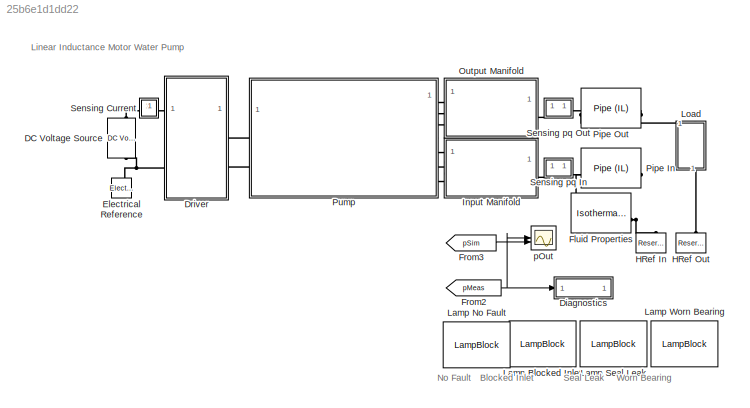
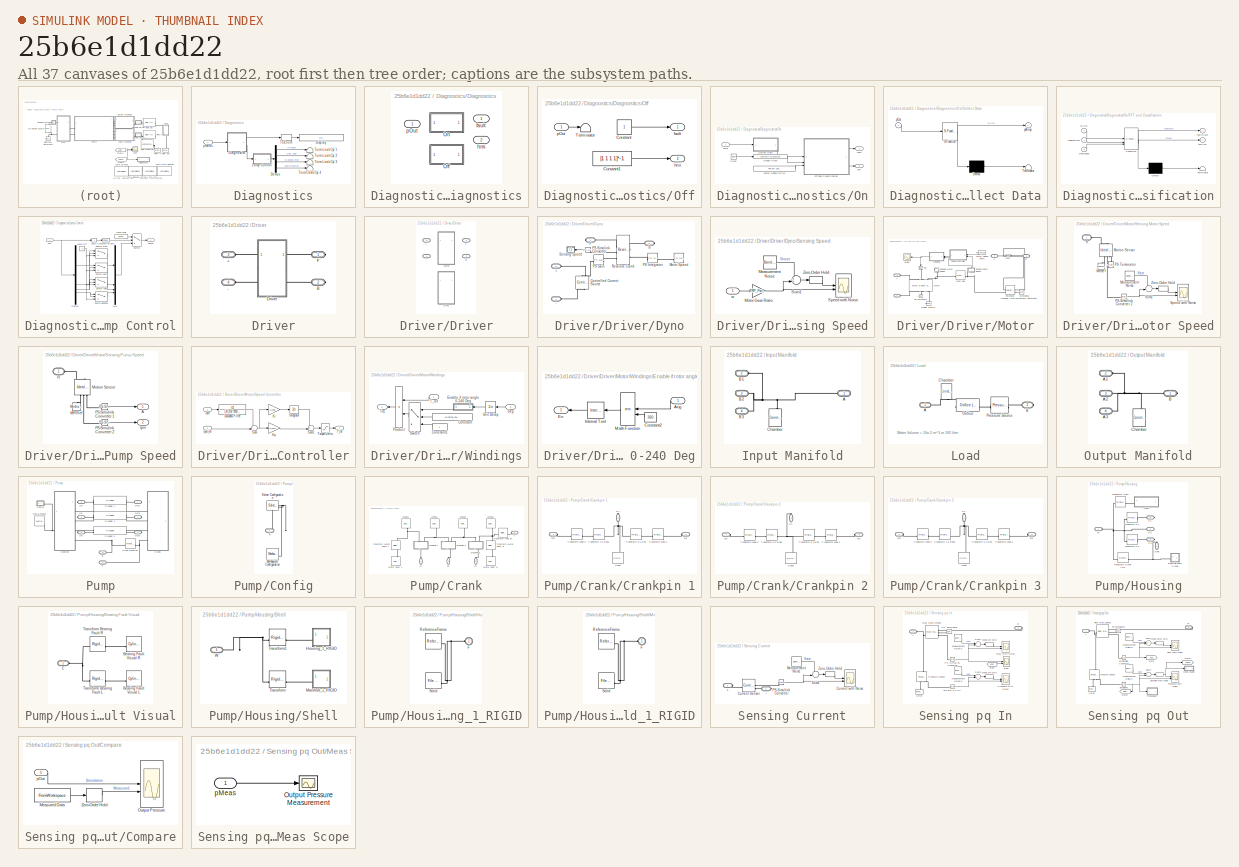
[diagram: thumbnail index - all 37 canvases of the model, root first then tree order]
MODEL slx_25b6e1d1dd22
KIND model
CONFIG AbsTol = auto
CONFIG EnableMultiTasking = on
CONFIG FixedStep = auto
CONFIG MaxStep = auto
CONFIG MinStep = auto
CONFIG RelTol = 1e-3
CONFIG SampleTimeConstraint = Unconstrained
CONFIG SolverName = VariableStepAuto
CONFIG StartTime = 0.0
CONFIG StopTime = 10
BLOCK [Reference] DC Voltage Source  REF=ee_lib/Additional
Components/SPICE Sources/DC Voltage Source
  NameLocation = left
  SourceBlock = ee_lib/Additional\nComponents/SPICE Sources/DC Voltage Source
  SourceType = DC Voltage Source
BLOCK [SubSystem] Diagnostics
  AttributesFormatString = Diagnostics: %<popup_fault_diagnostics>
BLOCK [Demux] Diagnostics/Demux
BLOCK [SubSystem] Diagnostics/Diagnostics
  LabelModeActiveChoice = Off
  Variant = on
  VariantControl = Variant1
  VariantControlMode = label
BLOCK [Outport] Diagnostics/Diagnostics/ fault
  VectorParamsAs1DForOutWhenUnconnected = off
BLOCK [Outport] Diagnostics/Diagnostics/ hmi
  Port = 2
  VectorParamsAs1DForOutWhenUnconnected = off
BLOCK [SubSystem] Diagnostics/Diagnostics/Off
  VariantControl = Off
BLOCK [Constant] Diagnostics/Diagnostics/Off/Constant
  OutDataTypeStr = int8
BLOCK [Constant] Diagnostics/Diagnostics/Off/Constant1
  Value = [1 1 1 1]*-1
BLOCK [Terminator] Diagnostics/Diagnostics/Off/Terminator
BLOCK [Outport] Diagnostics/Diagnostics/Off/fault
  VectorParamsAs1DForOutWhenUnconnected = off
BLOCK [Outport] Diagnostics/Diagnostics/Off/hmi
  Port = 2
  VectorParamsAs1DForOutWhenUnconnected = off
BLOCK [Inport] Diagnostics/Diagnostics/Off/pOut
BLOCK [SubSystem] Diagnostics/Diagnostics/On
  VariantControl = On
BLOCK [Clock] Diagnostics/Diagnostics/On/Clock
BLOCK [SubSystem] Diagnostics/Diagnostics/On/Collect Data
  ErrorFcn = Stateflow.Translate.translate
  NameLocation = top
  PermitHierarchicalResolution = ExplicitOnly
  SFBlockType = MATLAB Function
  SystemSampleTime = TRP_Par.Sensors.q.Ts
  TreatAsAtomicUnit = on
BLOCK [Demux] Diagnostics/Diagnostics/On/Collect Data/ Demux 
  Outputs = 1
BLOCK [S-Function] Diagnostics/Diagnostics/On/Collect Data/ SFunction 
  EnableBusSupport = on
  FunctionName = sf_sfun
  PortCounts = [1 2]
  SFcnIsStateOwnerBlock = off
  SFunctionDeploymentMode = off
  Tag = Stateflow S-Function 2
BLOCK [Terminator] Diagnostics/Diagnostics/On/Collect Data/ Terminator 
BLOCK [Outport] Diagnostics/Diagnostics/On/Collect Data/pArray
  VectorParamsAs1DForOutWhenUnconnected = off
BLOCK [Inport] Diagnostics/Diagnostics/On/Collect Data/pOut
BLOCK [SubSystem] Diagnostics/Diagnostics/On/FFT and Classification
  ErrorFcn = Stateflow.Translate.translate
  PermitHierarchicalResolution = ExplicitOnly
  SFBlockType = MATLAB Function
  SystemSampleTime = TRP_Par.Sensors.q.Ts*100
  TreatAsAtomicUnit = on
BLOCK [Demux] Diagnostics/Diagnostics/On/FFT and Classification/ Demux 
  Outputs = 1
BLOCK [S-Function] Diagnostics/Diagnostics/On/FFT and Classification/ SFunction 
  EnableBusSupport = on
  FunctionName = sf_sfun
  PortCounts = [3 3]
  SFcnIsStateOwnerBlock = off
  SFunctionDeploymentMode = off
  Tag = Stateflow S-Function 1
BLOCK [Terminator] Diagnostics/Diagnostics/On/FFT and Classification/ Terminator 
BLOCK [Inport] Diagnostics/Diagnostics/On/FFT and Classification/cmdSpeed
  Port = 3
BLOCK [Inport] Diagnostics/Diagnostics/On/FFT and Classification/enablePred
  Port = 2
BLOCK [Outport] Diagnostics/Diagnostics/On/FFT and Classification/faultState
  VectorParamsAs1DForOutWhenUnconnected = off
BLOCK [Outport] Diagnostics/Diagnostics/On/FFT and Classification/hmiVec
  Port = 2
  VectorParamsAs1DForOutWhenUnconnected = off
BLOCK [Inport] Diagnostics/Diagnostics/On/FFT and Classification/pArray
BLOCK [Constant] Diagnostics/Diagnostics/On/Motor Speed (RPM)
  Value = TRP_Par.Spec.target_spd
BLOCK [Reference] Diagnostics/Diagnostics/On/Steady State  REF=simulink/Logic and Bit
Operations/Compare
To Constant
  SourceBlock = simulink/Logic and Bit\nOperations/Compare\nTo Constant
  SourceType = Compare To Constant
BLOCK [Outport] Diagnostics/Diagnostics/On/fault
  VectorParamsAs1DForOutWhenUnconnected = off
BLOCK [Outport] Diagnostics/Diagnostics/On/hmi
  Port = 2
  VectorParamsAs1DForOutWhenUnconnected = off
BLOCK [Inport] Diagnostics/Diagnostics/On/pOut
BLOCK [Inport] Diagnostics/Diagnostics/pOut 
BLOCK [Display] Diagnostics/Display
  Decimation = 1
BLOCK [SubSystem] Diagnostics/Lamp Control
BLOCK [Reference] Diagnostics/Lamp Control/Compare To Zero  REF=simulink/Logic and Bit
Operations/Compare
To Zero
  SourceBlock = simulink/Logic and Bit\nOperations/Compare\nTo Zero
  SourceType = Compare To Zero
BLOCK [Demux] Diagnostics/Lamp Control/Demux
BLOCK [Constant] Diagnostics/Lamp Control/Lamp Off
  NameLocation = top
  Value = -1
BLOCK [Constant] Diagnostics/Lamp Control/Lamp Wait
  NameLocation = top
  Value = [0 0 0 0]
BLOCK [Mux] Diagnostics/Lamp Control/Mux
  DisplayOption = bar
BLOCK [Sum] Diagnostics/Lamp Control/Sum1
  IconShape = rectangular
  Inputs = +
BLOCK [Switch] Diagnostics/Lamp Control/Switch
  Criteria = u2 > Threshold
  InputSameDT = off
  SaturateOnIntegerOverflow = off
  Threshold = 0.5
  ZeroCross = off
BLOCK [Switch] Diagnostics/Lamp Control/Switch Bearing
  Criteria = u2 > Threshold
  InputSameDT = off
  SaturateOnIntegerOverflow = off
  ZeroCross = off
BLOCK [Switch] Diagnostics/Lamp Control/Switch Inlet
  Criteria = u2 > Threshold
  InputSameDT = off
  SaturateOnIntegerOverflow = off
  ZeroCross = off
BLOCK [Switch] Diagnostics/Lamp Control/Switch Leak
  Criteria = u2 > Threshold
  InputSameDT = off
  SaturateOnIntegerOverflow = off
  ZeroCross = off
BLOCK [Switch] Diagnostics/Lamp Control/Switch Nom
  Criteria = u2 > Threshold
  InputSameDT = off
  SaturateOnIntegerOverflow = off
  ZeroCross = off
BLOCK [Inport] Diagnostics/Lamp Control/hmi
BLOCK [Outport] Diagnostics/Lamp Control/lamps
  VectorParamsAs1DForOutWhenUnconnected = off
BLOCK [Terminator] Diagnostics/Term Leak Cyl 1
BLOCK [Terminator] Diagnostics/Term Leak Cyl 2
BLOCK [Terminator] Diagnostics/Term Leak Cyl 3
BLOCK [Terminator] Diagnostics/Term Leak Cyl 4
BLOCK [DataTypeConversion] Diagnostics/ToEnum
  NameLocation = top
  OutDataTypeStr = Enum: sm_pump_triplex_fault_types
  RndMeth = Floor
  SaturateOnIntegerOverflow = off
BLOCK [Inport] Diagnostics/pMeas
BLOCK [SubSystem] Driver
  AttributesFormatString = Driver: %<popup_driver_type>
  Tag = PublishSubsystem
  VariantControl = Electric
BLOCK [PMIOPort] Driver/+
  Port = 3
  Side = Left
BLOCK [PMIOPort] Driver/-
  Port = 4
  Side = Left
BLOCK [PMIOPort] Driver/B
  Port = 2
  Side = Right
BLOCK [SubSystem] Driver/Driver
  AttributesFormatString = %<ActiveVariant>
  LabelModeActiveChoice = Motor
  Variant = on
  VariantControl = Variant1
  VariantControlMode = label
BLOCK [PMIOPort] Driver/Driver/ + 
  Port = 3
  Side = Left
BLOCK [PMIOPort] Driver/Driver/ - 
  Port = 4
  Side = Left
BLOCK [PMIOPort] Driver/Driver/ B 
  Port = 2
  Side = Right
BLOCK [PMIOPort] Driver/Driver/ F 
  Side = Right
BLOCK [SubSystem] Driver/Driver/Dyno
  VariantControl = Dyno
BLOCK [PMIOPort] Driver/Driver/Dyno/+
  Port = 3
  Side = Left
BLOCK [PMIOPort] Driver/Driver/Dyno/-
  Port = 4
  Side = Left
BLOCK [PMIOPort] Driver/Driver/Dyno/B
  NameLocation = top
  Port = 2
  Side = Right
BLOCK [Reference] Driver/Driver/Dyno/Controlled Current Source  REF=fl_lib/Electrical/Electrical Sources/Controlled Current
Source
  NameLocation = left
  SourceBlock = fl_lib/Electrical/Electrical Sources/Controlled Current\nSource
  SourceType = Controlled Current\nSource
BLOCK [PMIOPort] Driver/Driver/Dyno/F
  NameLocation = top
  Side = Right
BLOCK [Reference] Driver/Driver/Dyno/Motor Speed  REF=fl_lib/Physical Signals/Sources/PS Constant
  SourceBlock = fl_lib/Physical Signals/Sources/PS Constant
  SourceType = PS Constant
BLOCK [Reference] Driver/Driver/Dyno/PS Gain  REF=fl_lib/Physical Signals/Functions/PS Gain
  SourceBlock = fl_lib/Physical Signals/Functions/PS Gain
  SourceType = PS Gain
BLOCK [Reference] Driver/Driver/Dyno/PS Integrator  REF=fl_lib/Physical Signals/Linear Operators/PS Integrator
  SourceBlock = fl_lib/Physical Signals/Linear Operators/PS Integrator
  SourceType = PS Integrator
BLOCK [Reference] Driver/Driver/Dyno/PS-Simulink Converter  REF=nesl_utility/PS-Simulink
Converter
  SourceBlock = nesl_utility/PS-Simulink\nConverter
  SourceType = PS-Simulink\nConverter
BLOCK [Reference] Driver/Driver/Dyno/Revolute Crank  REF=sm_lib/Joints/Revolute Joint
  SourceBlock = sm_lib/Joints/Revolute Joint
  SourceType = Revolute Joint
BLOCK [SubSystem] Driver/Driver/Dyno/Sensing Speed
BLOCK [Reference] Driver/Driver/Dyno/Sensing Speed/Measurement Noise  REF=simulink/Sources/Band-Limited
White Noise
  NameLocation = top
  SourceBlock = simulink/Sources/Band-Limited\nWhite Noise
  SourceType = Band-Limited White Noise.
BLOCK [Gain] Driver/Driver/Dyno/Sensing Speed/Motor Gear Ratio
  Gain = TRP_Par.Motor.Gear.ratio
BLOCK [Scope] Driver/Driver/Dyno/Sensing Speed/Speed with Noise
  Floating = off
  NumInputPorts = 2
  ScopeSpecificationString = Simulink.scopes.TimeScopeBlockCfg('CurrentConfiguration', extmgr.ConfigurationSet(extmgr.Configuration('Core','General UI',true),extmgr.Configuration('Core','Source UI',true),extmgr.Configuration('Sources','WiredSimulink',true,'DataLoggingVariableName','ScopeData1'),extmgr.Configuration('Visuals','Time Domain',true,'SerializedDisplays',{struct('MinYLimReal','-126.98875','MaxYLimReal','1142.56233',...<+1516ch>
BLOCK [Sum] Driver/Driver/Dyno/Sensing Speed/Sum1
  Inputs = ++|
BLOCK [ZeroOrderHold] Driver/Driver/Dyno/Sensing Speed/Zero-Order Hold
  NameLocation = top
  SampleTime = TRP_Par.Sensors.w.Ts
BLOCK [Inport] Driver/Driver/Dyno/Sensing Speed/w
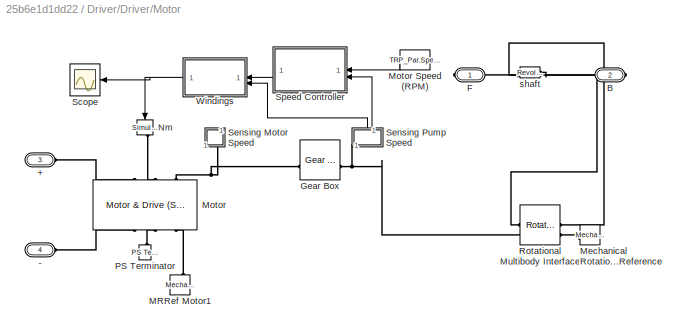
BLOCK [SubSystem] Driver/Driver/Motor
  VariantControl = Motor
BLOCK [PMIOPort] Driver/Driver/Motor/+
  Port = 3
  Side = Left
BLOCK [PMIOPort] Driver/Driver/Motor/-
  Port = 4
  Side = Left
BLOCK [PMIOPort] Driver/Driver/Motor/B
  Port = 2
  Side = Right
BLOCK [PMIOPort] Driver/Driver/Motor/F
  Side = Right
BLOCK [Reference] Driver/Driver/Motor/Gear Box  REF=fl_lib/Mechanical/Mechanisms/Gear Box
  SourceBlock = fl_lib/Mechanical/Mechanisms/Gear Box
  SourceType = Gear Box
BLOCK [Reference] Driver/Driver/Motor/MRRef Motor1  REF=fl_lib/Mechanical/Rotational Elements/Mechanical
Rotational Reference
  NameLocation = right
  SourceBlock = fl_lib/Mechanical/Rotational Elements/Mechanical\nRotational Reference
  SourceType = Mechanical\nRotational Reference
  Tag = Factory Generic
BLOCK [Reference] Driver/Driver/Motor/Mechanical Rotational Reference  REF=fl_lib/Mechanical/Rotational Elements/Mechanical
Rotational Reference
  NameLocation = top
  SourceBlock = fl_lib/Mechanical/Rotational Elements/Mechanical\nRotational Reference
  SourceType = Mechanical\nRotational Reference
BLOCK [Reference] Driver/Driver/Motor/Motor  REF=ee_lib/Electromechanical/Motor & Drive
(System Level)
  NameLocation = right
  SourceBlock = ee_lib/Electromechanical/Motor & Drive\n(System Level)
  SourceType = Motor & Drive\n(System Level)
BLOCK [Constant] Driver/Driver/Motor/Motor Speed (RPM)
  NameLocation = top
  Value = TRP_Par.Spec.target_spd*1.0731
BLOCK [Reference] Driver/Driver/Motor/Nm  REF=nesl_utility/Simulink-PS
Converter
  NameLocation = left
  SourceBlock = nesl_utility/Simulink-PS\nConverter
  SourceType = Simulink-PS\nConverter
BLOCK [Reference] Driver/Driver/Motor/PS Terminator  REF=fl_lib/Physical Signals/Sinks/PS Terminator
  NameLocation = left
  SourceBlock = fl_lib/Physical Signals/Sinks/PS Terminator
  SourceType = PS Terminator
BLOCK [Reference] Driver/Driver/Motor/Rotational Multibody Interface  REF=fl_lib/Mechanical/Multibody Interfaces/Rotational Multibody
Interface
  SourceBlock = fl_lib/Mechanical/Multibody Interfaces/Rotational Multibody\nInterface
  SourceType = Rotational Multibody\nInterface
BLOCK [Scope] Driver/Driver/Motor/Scope
  Floating = off
  NumInputPorts = 1
  ScopeSpecificationString = Simulink.scopes.TimeScopeBlockCfg('CurrentConfiguration', extmgr.ConfigurationSet(extmgr.Configuration('Core','General UI',true),extmgr.Configuration('Core','Source UI',true),extmgr.Configuration('Sources','WiredSimulink',true,'DataLoggingVariableName','ScopeData1'),extmgr.Configuration('Visuals','Time Domain',true,'SerializedDisplays',{struct('MinYLimReal','-2.40087','MaxYLimReal','21.60781','YLa...<+1506ch>
BLOCK [SubSystem] Driver/Driver/Motor/Sensing Motor Speed
  NameLocation = right
BLOCK [Reference] Driver/Driver/Motor/Sensing Motor Speed/MRRef  REF=fl_lib/Mechanical/Rotational Elements/Mechanical
Rotational Reference
  NameLocation = left
  SourceBlock = fl_lib/Mechanical/Rotational Elements/Mechanical\nRotational Reference
  SourceType = Mechanical\nRotational Reference
BLOCK [Reference] Driver/Driver/Motor/Sensing Motor Speed/Measurement Noise  REF=simulink/Sources/Band-Limited
White Noise
  NameLocation = top
  SourceBlock = simulink/Sources/Band-Limited\nWhite Noise
  SourceType = Band-Limited White Noise.
BLOCK [Reference] Driver/Driver/Motor/Sensing Motor Speed/Motion Sensor  REF=fl_lib/Mechanical/Mechanical Sensors/Ideal Rotational
Motion Sensor
  NameLocation = right
  SourceBlock = fl_lib/Mechanical/Mechanical Sensors/Ideal Rotational\nMotion Sensor
  SourceType = Ideal Rotational\nMotion Sensor
BLOCK [Reference] Driver/Driver/Motor/Sensing Motor Speed/PS Terminator  REF=fl_lib/Physical Signals/Sinks/PS Terminator
  NameLocation = left
  SourceBlock = fl_lib/Physical Signals/Sinks/PS Terminator
  SourceType = PS Terminator
BLOCK [Reference] Driver/Driver/Motor/Sensing Motor Speed/PS-Simulink Converter 2  REF=nesl_utility/PS-Simulink
Converter
  SourceBlock = nesl_utility/PS-Simulink\nConverter
  SourceType = PS-Simulink\nConverter
BLOCK [PMIOPort] Driver/Driver/Motor/Sensing Motor Speed/R
  Side = Left
BLOCK [Scope] Driver/Driver/Motor/Sensing Motor Speed/Speed with Noise
  Floating = off
  NumInputPorts = 2
  ScopeSpecificationString = Simulink.scopes.TimeScopeBlockCfg('CurrentConfiguration', extmgr.ConfigurationSet(extmgr.Configuration('Core','General UI',true),extmgr.Configuration('Core','Source UI',true),extmgr.Configuration('Sources','WiredSimulink',true,'DataLoggingVariableName','ScopeData1'),extmgr.Configuration('Visuals','Time Domain',true,'SerializedDisplays',{struct('MinYLimReal','-126.98875','MaxYLimReal','1142.56233',...<+1475ch>
BLOCK [Sum] Driver/Driver/Motor/Sensing Motor Speed/Sum1
  Inputs = ++|
BLOCK [ZeroOrderHold] Driver/Driver/Motor/Sensing Motor Speed/Zero-Order Hold
  NameLocation = top
  SampleTime = TRP_Par.Sensors.w.Ts
BLOCK [SubSystem] Driver/Driver/Motor/Sensing Pump Speed
  NameLocation = right
BLOCK [Outport] Driver/Driver/Motor/Sensing Pump Speed/A
  VectorParamsAs1DForOutWhenUnconnected = off
BLOCK [Reference] Driver/Driver/Motor/Sensing Pump Speed/MRRef  REF=fl_lib/Mechanical/Rotational Elements/Mechanical
Rotational Reference
  NameLocation = left
  SourceBlock = fl_lib/Mechanical/Rotational Elements/Mechanical\nRotational Reference
  SourceType = Mechanical\nRotational Reference
BLOCK [Reference] Driver/Driver/Motor/Sensing Pump Speed/Motion Sensor  REF=fl_lib/Mechanical/Mechanical Sensors/Ideal Rotational
Motion Sensor
  NameLocation = right
  SourceBlock = fl_lib/Mechanical/Mechanical Sensors/Ideal Rotational\nMotion Sensor
  SourceType = Ideal Rotational\nMotion Sensor
BLOCK [Reference] Driver/Driver/Motor/Sensing Pump Speed/PS-Simulink Converter 1  REF=nesl_utility/PS-Simulink
Converter
  SourceBlock = nesl_utility/PS-Simulink\nConverter
  SourceType = PS-Simulink\nConverter
BLOCK [Reference] Driver/Driver/Motor/Sensing Pump Speed/PS-Simulink Converter 2  REF=nesl_utility/PS-Simulink
Converter
  SourceBlock = nesl_utility/PS-Simulink\nConverter
  SourceType = PS-Simulink\nConverter
BLOCK [PMIOPort] Driver/Driver/Motor/Sensing Pump Speed/R
  Side = Left
BLOCK [Outport] Driver/Driver/Motor/Sensing Pump Speed/rpm
  Port = 2
  VectorParamsAs1DForOutWhenUnconnected = off
BLOCK [SubSystem] Driver/Driver/Motor/Speed Controller
  NameLocation = top
BLOCK [Integrator] Driver/Driver/Motor/Speed Controller/Integrator
  AttributesFormatString = Saturate: [%<LowerSaturationLimit>, %<UpperSaturationLimit>]
  LimitOutput = on
  LowerSaturationLimit = -40
  UpperSaturationLimit = 40
BLOCK [Gain] Driver/Driver/Motor/Speed Controller/Ki
  Gain = 0.002
BLOCK [Gain] Driver/Driver/Motor/Speed Controller/Kp
  Gain = 0.02*2
BLOCK [TransferFcn] Driver/Driver/Motor/Speed Controller/Lowpass Filter
  Denominator = [1/(2*pi*200) 1]
BLOCK [Sum] Driver/Driver/Motor/Speed Controller/Sum
  Inputs = -+|
BLOCK [Sum] Driver/Driver/Motor/Speed Controller/Sum1
  Inputs = ++|
BLOCK [Outport] Driver/Driver/Motor/Speed Controller/T_ref
  VectorParamsAs1DForOutWhenUnconnected = off
BLOCK [Saturate] Driver/Driver/Motor/Speed Controller/Torque Limits
  LowerLimit = -400
  UpperLimit = 400
BLOCK [Inport] Driver/Driver/Motor/Speed Controller/rpm
  Port = 2
BLOCK [Inport] Driver/Driver/Motor/Speed Controller/rpm_ref
BLOCK [SubSystem] Driver/Driver/Motor/Windings
BLOCK [Constant] Driver/Driver/Motor/Windings/Constant
  Value = winding_fault_sw
BLOCK [Constant] Driver/Driver/Motor/Windings/Constant1
BLOCK [SubSystem] Driver/Driver/Motor/Windings/Enable if rotor angle 0-240 Deg
  NameLocation = top
BLOCK [Inport] Driver/Driver/Motor/Windings/Enable if rotor angle 0-240 Deg/Ang
BLOCK [Constant] Driver/Driver/Motor/Windings/Enable if rotor angle 0-240 Deg/Constant2
  Value = 360
BLOCK [Outport] Driver/Driver/Motor/Windings/Enable if rotor angle 0-240 Deg/En
  VectorParamsAs1DForOutWhenUnconnected = off
BLOCK [Reference] Driver/Driver/Motor/Windings/Enable if rotor angle 0-240 Deg/Interval Test  REF=simulink/Logic and Bit
Operations/Interval Test
  AttributesFormatString = %<lowlimit><angle<%<uplimit>
  SourceBlock = simulink/Logic and Bit\nOperations/Interval Test
  SourceType = Interval Test
BLOCK [Math] Driver/Driver/Motor/Windings/Enable if rotor angle 0-240 Deg/Math Function
  Operator = rem
  SignedPower = on
BLOCK [Product] Driver/Driver/Motor/Windings/Product
BLOCK [Switch] Driver/Driver/Motor/Windings/Switch
  Criteria = u2 > Threshold
  InputSameDT = off
  SaturateOnIntegerOverflow = off
  Threshold = 1.5
BLOCK [Inport] Driver/Driver/Motor/Windings/T_ref
BLOCK [Outport] Driver/Driver/Motor/Windings/Trq
  VectorParamsAs1DForOutWhenUnconnected = off
BLOCK [UnitDelay] Driver/Driver/Motor/Windings/Unit Delay
  HasFrameUpgradeWarning = on
  SampleTime = 0.001
BLOCK [Inport] Driver/Driver/Motor/Windings/deg
  Port = 2
BLOCK [Reference] Driver/Driver/Motor/shaft  REF=sm_lib/Joints/Revolute Joint
  SourceBlock = sm_lib/Joints/Revolute Joint
  SourceType = Revolute Joint
BLOCK [PMIOPort] Driver/F
  Side = Right
BLOCK [Reference] Electrical Reference  REF=fl_lib/Electrical/Electrical Elements/Electrical Reference
  NameLocation = right
  SourceBlock = fl_lib/Electrical/Electrical Elements/Electrical Reference
  SourceType = Electrical Reference
BLOCK [Reference] Fluid Properties  REF=fl_lib/Isothermal Liquid/Utilities/Isothermal Liquid
Properties (IL)
  LibrarySourceBlock = sh_lib/Hydraulic Utilities/Hydraulic Fluid
  SourceBlock = fl_lib/Isothermal Liquid/Utilities/Isothermal Liquid\nProperties (IL)
  SourceType = Isothermal Liquid\nProperties (IL)
BLOCK [From] From2
  GotoTag = pMeas
  NameLocation = top
  TagVisibility = global
BLOCK [From] From3
  GotoTag = pSim
  TagVisibility = global
BLOCK [Reference] HRef In  REF=fl_lib/Isothermal Liquid/Elements/Reservoir (IL)
  LibrarySourceBlock = fl_lib/Hydraulic/Hydraulic Elements/Hydraulic Reference
  NameLocation = right
  SourceBlock = fl_lib/Isothermal Liquid/Elements/Reservoir (IL)
  SourceType = Reservoir (IL)
BLOCK [Reference] HRef Out  REF=fl_lib/Isothermal Liquid/Elements/Reservoir (IL)
  LibrarySourceBlock = fl_lib/Hydraulic/Hydraulic Elements/Hydraulic Reference
  NameLocation = right
  SourceBlock = fl_lib/Isothermal Liquid/Elements/Reservoir (IL)
  SourceType = Reservoir (IL)
BLOCK [SubSystem] Input Manifold
BLOCK [PMIOPort] Input Manifold/A
  Side = Right
BLOCK [PMIOPort] Input Manifold/B1
  Port = 2
  Side = Left
BLOCK [PMIOPort] Input Manifold/B2
  Port = 3
  Side = Left
BLOCK [PMIOPort] Input Manifold/B3
  Port = 4
  Side = Left
BLOCK [Reference] Input Manifold/Chamber  REF=fl_lib/Isothermal Liquid/Elements/Constant Volume
Chamber (IL)
  LibrarySourceBlock = fl_lib/Hydraulic/Hydraulic Elements/Constant Volume\nHydraulic Chamber
  NameLocation = right
  SourceBlock = fl_lib/Isothermal Liquid/Elements/Constant Volume\nChamber (IL)
  SourceType = Constant Volume\nChamber (IL)
BLOCK [LampBlock] Lamp Blocked Inlet
  LabelPosition = Hide
BLOCK [LampBlock] Lamp No Fault
  LabelPosition = Hide
BLOCK [LampBlock] Lamp Seal Leak
  LabelPosition = Hide
BLOCK [LampBlock] Lamp Worn Bearing
  LabelPosition = Hide
BLOCK [SubSystem] Load
  NameLocation = left
BLOCK [PMIOPort] Load/A
  Side = Left
BLOCK [PMIOPort] Load/B
  Port = 2
  Side = Right
BLOCK [Reference] Load/Chamber  REF=fl_lib/Isothermal Liquid/Elements/Constant Volume
Chamber (IL)
  LibrarySourceBlock = fl_lib/Hydraulic/Hydraulic Elements/Constant Volume\nHydraulic Chamber
  NameLocation = left
  SourceBlock = fl_lib/Isothermal Liquid/Elements/Constant Volume\nChamber (IL)
  SourceType = Constant Volume\nChamber (IL)
BLOCK [Reference] Load/Orifice  REF=SimscapeFluids_lib/Isothermal Liquid/Valves & Orifices/Orifices/Orifice (IL)
  LibrarySourceBlock = sh_lib/Orifices/Fixed Orifice
  SourceBlock = SimscapeFluids_lib/Isothermal Liquid/Valves & Orifices/Orifices/Orifice (IL)
  SourceType = Orifice (IL)
BLOCK [Reference] Load/Pressure Source  REF=fl_lib/Isothermal Liquid/Sources/Pressure Source (IL)
  LibrarySourceBlock = fl_lib/Hydraulic/Hydraulic Sources/Hydraulic Constant\nPressure Source
  SourceBlock = fl_lib/Isothermal Liquid/Sources/Pressure Source (IL)
  SourceType = Pressure Source (IL)
BLOCK [SubSystem] Output Manifold
  NameLocation = top
BLOCK [PMIOPort] Output Manifold/A1
  Port = 2
  Side = Left
BLOCK [PMIOPort] Output Manifold/A2
  Port = 3
  Side = Left
BLOCK [PMIOPort] Output Manifold/A3
  Port = 4
  Side = Left
BLOCK [PMIOPort] Output Manifold/B
  Side = Right
BLOCK [Reference] Output Manifold/Chamber  REF=fl_lib/Isothermal Liquid/Elements/Constant Volume
Chamber (IL)
  LibrarySourceBlock = fl_lib/Hydraulic/Hydraulic Elements/Constant Volume\nHydraulic Chamber
  NameLocation = right
  SourceBlock = fl_lib/Isothermal Liquid/Elements/Constant Volume\nChamber (IL)
  SourceType = Constant Volume\nChamber (IL)
BLOCK [Reference] Pipe In  REF=SimscapeFluids_lib/Isothermal Liquid/Pipes & Fittings/Pipe (IL)
  LibrarySourceBlock = sh_lib/Pipelines/Hydraulic Pipeline
  SourceBlock = SimscapeFluids_lib/Isothermal Liquid/Pipes & Fittings/Pipe (IL)
  SourceType = Pipe (IL)
BLOCK [Reference] Pipe Out  REF=SimscapeFluids_lib/Isothermal Liquid/Pipes & Fittings/Pipe (IL)
  LibrarySourceBlock = sh_lib/Pipelines/Hydraulic Pipeline
  SourceBlock = SimscapeFluids_lib/Isothermal Liquid/Pipes & Fittings/Pipe (IL)
  SourceType = Pipe (IL)
BLOCK [SubSystem] Pump
  Tag = PublishSubsystem
BLOCK [PMIOPort] Pump/B
  Port = 8
  Side = Left
BLOCK [SubSystem] Pump/Config
BLOCK [PMIOPort] Pump/Config/C
  Side = Right
BLOCK [Reference] Pump/Config/Mechanism Configuration  REF=sm_lib/Utilities/Mechanism
Configuration
  SourceBlock = sm_lib/Utilities/Mechanism\nConfiguration
  SourceType = Mechanism\nConfiguration
BLOCK [Reference] Pump/Config/Solver Configuration  REF=nesl_utility/Solver
Configuration
  SourceBlock = nesl_utility/Solver\nConfiguration
  SourceType = Solver\nConfiguration
BLOCK [SubSystem] Pump/Crank
BLOCK [Reference] Pump/Crank Bearing  REF=sm_lib/Joints/Revolute Joint
  SourceBlock = sm_lib/Joints/Revolute Joint
  SourceType = Revolute Joint
BLOCK [PMIOPort] Pump/Crank/A
  Port = 4
  Side = Left
BLOCK [SubSystem] Pump/Crank/Crankpin 1
  NameLocation = left
BLOCK [PMIOPort] Pump/Crank/Crankpin 1/P1
  NameLocation = left
  Port = 2
  Side = Right
BLOCK [Reference] Pump/Crank/Crankpin 1/Shaft  REF=sm_lib/Body Elements/Cylindrical Solid
  NameLocation = right
  SourceBlock = sm_lib/Body Elements/Cylindrical Solid
  SourceType = Cylindrical Solid
BLOCK [Reference] Pump/Crank/Crankpin 1/Transform S1 End  REF=sm_lib/Frames and
Transforms/Rigid
Transform
  SourceBlock = sm_lib/Frames and\nTransforms/Rigid\nTransform
  SourceType = Rigid\nTransform
BLOCK [Reference] Pump/Crank/Crankpin 1/Transform S1 End1  REF=sm_lib/Frames and
Transforms/Rigid
Transform
  SourceBlock = sm_lib/Frames and\nTransforms/Rigid\nTransform
  SourceType = Rigid\nTransform
BLOCK [Reference] Pump/Crank/Crankpin 1/Transform Web 1  REF=sm_lib/Frames and
Transforms/Rigid
Transform
  SourceBlock = sm_lib/Frames and\nTransforms/Rigid\nTransform
  SourceType = Rigid\nTransform
BLOCK [Reference] Pump/Crank/Crankpin 1/Transform Web 2  REF=sm_lib/Frames and
Transforms/Rigid
Transform
  SourceBlock = sm_lib/Frames and\nTransforms/Rigid\nTransform
  SourceType = Rigid\nTransform
BLOCK [PMIOPort] Pump/Crank/Crankpin 1/W1
  Port = 3
  Side = Left
BLOCK [PMIOPort] Pump/Crank/Crankpin 1/W2
  Side = Left
BLOCK [SubSystem] Pump/Crank/Crankpin 2
  NameLocation = left
BLOCK [PMIOPort] Pump/Crank/Crankpin 2/P1
  NameLocation = left
  Port = 2
  Side = Right
BLOCK [Reference] Pump/Crank/Crankpin 2/Shaft  REF=sm_lib/Body Elements/Cylindrical Solid
  NameLocation = right
  SourceBlock = sm_lib/Body Elements/Cylindrical Solid
  SourceType = Cylindrical Solid
BLOCK [Reference] Pump/Crank/Crankpin 2/Transform S1 End  REF=sm_lib/Frames and
Transforms/Rigid
Transform
  SourceBlock = sm_lib/Frames and\nTransforms/Rigid\nTransform
  SourceType = Rigid\nTransform
BLOCK [Reference] Pump/Crank/Crankpin 2/Transform S1 End1  REF=sm_lib/Frames and
Transforms/Rigid
Transform
  SourceBlock = sm_lib/Frames and\nTransforms/Rigid\nTransform
  SourceType = Rigid\nTransform
BLOCK [Reference] Pump/Crank/Crankpin 2/Transform Web 1  REF=sm_lib/Frames and
Transforms/Rigid
Transform
  SourceBlock = sm_lib/Frames and\nTransforms/Rigid\nTransform
  SourceType = Rigid\nTransform
BLOCK [Reference] Pump/Crank/Crankpin 2/Transform Web 2  REF=sm_lib/Frames and
Transforms/Rigid
Transform
  SourceBlock = sm_lib/Frames and\nTransforms/Rigid\nTransform
  SourceType = Rigid\nTransform
BLOCK [PMIOPort] Pump/Crank/Crankpin 2/W1
  Port = 3
  Side = Left
BLOCK [PMIOPort] Pump/Crank/Crankpin 2/W2
  Side = Left
BLOCK [SubSystem] Pump/Crank/Crankpin 3
  NameLocation = left
BLOCK [PMIOPort] Pump/Crank/Crankpin 3/P1
  NameLocation = left
  Port = 2
  Side = Right
BLOCK [Reference] Pump/Crank/Crankpin 3/Shaft  REF=sm_lib/Body Elements/Cylindrical Solid
  NameLocation = right
  SourceBlock = sm_lib/Body Elements/Cylindrical Solid
  SourceType = Cylindrical Solid
BLOCK [Reference] Pump/Crank/Crankpin 3/Transform S1 End  REF=sm_lib/Frames and
Transforms/Rigid
Transform
  SourceBlock = sm_lib/Frames and\nTransforms/Rigid\nTransform
  SourceType = Rigid\nTransform
BLOCK [Reference] Pump/Crank/Crankpin 3/Transform S1 End1  REF=sm_lib/Frames and
Transforms/Rigid
Transform
  SourceBlock = sm_lib/Frames and\nTransforms/Rigid\nTransform
  SourceType = Rigid\nTransform
BLOCK [Reference] Pump/Crank/Crankpin 3/Transform Web 1  REF=sm_lib/Frames and
Transforms/Rigid
Transform
  SourceBlock = sm_lib/Frames and\nTransforms/Rigid\nTransform
  SourceType = Rigid\nTransform
BLOCK [Reference] Pump/Crank/Crankpin 3/Transform Web 2  REF=sm_lib/Frames and
Transforms/Rigid
Transform
  SourceBlock = sm_lib/Frames and\nTransforms/Rigid\nTransform
  SourceType = Rigid\nTransform
BLOCK [PMIOPort] Pump/Crank/Crankpin 3/W1
  Port = 3
  Side = Left
BLOCK [PMIOPort] Pump/Crank/Crankpin 3/W2
  Side = Left
BLOCK [Reference] Pump/Crank/Motor Shaft L  REF=sm_lib/Body Elements/Cylindrical Solid
  NameLocation = left
  SourceBlock = sm_lib/Body Elements/Cylindrical Solid
  SourceType = Cylindrical Solid
BLOCK [Reference] Pump/Crank/Motor Shaft R  REF=sm_lib/Body Elements/Cylindrical Solid
  NameLocation = right
  SourceBlock = sm_lib/Body Elements/Cylindrical Solid
  SourceType = Cylindrical Solid
BLOCK [PMIOPort] Pump/Crank/P1
  NameLocation = left
  Side = Left
BLOCK [PMIOPort] Pump/Crank/P2
  NameLocation = left
  Port = 2
  Side = Left
BLOCK [PMIOPort] Pump/Crank/P3
  NameLocation = left
  Port = 3
  Side = Left
BLOCK [Reference] Pump/Crank/Transform Motor Shaft L  REF=sm_lib/Frames and
Transforms/Rigid
Transform
  NameLocation = left
  SourceBlock = sm_lib/Frames and\nTransforms/Rigid\nTransform
  SourceType = Rigid\nTransform
BLOCK [Reference] Pump/Crank/Transform Motor Shaft R  REF=sm_lib/Frames and
Transforms/Rigid
Transform
  NameLocation = right
  SourceBlock = sm_lib/Frames and\nTransforms/Rigid\nTransform
  SourceType = Rigid\nTransform
BLOCK [Reference] Pump/Crank/Transform Web 30  REF=sm_lib/Frames and
Transforms/Rigid
Transform
  NameLocation = top
  SourceBlock = sm_lib/Frames and\nTransforms/Rigid\nTransform
  SourceType = Rigid\nTransform
BLOCK [Reference] Pump/Crank/Web01  REF=sm_lib/Body Elements/Cylindrical Solid
  NameLocation = left
  SourceBlock = sm_lib/Body Elements/Cylindrical Solid
  SourceType = Cylindrical Solid
BLOCK [Reference] Pump/Crank/Web12  REF=sm_lib/Body Elements/Cylindrical Solid
  NameLocation = left
  SourceBlock = sm_lib/Body Elements/Cylindrical Solid
  SourceType = Cylindrical Solid
BLOCK [Reference] Pump/Crank/Web23  REF=sm_lib/Body Elements/Cylindrical Solid
  NameLocation = left
  SourceBlock = sm_lib/Body Elements/Cylindrical Solid
  SourceType = Cylindrical Solid
BLOCK [Reference] Pump/Crank/Web30  REF=sm_lib/Body Elements/Cylindrical Solid
  NameLocation = left
  SourceBlock = sm_lib/Body Elements/Cylindrical Solid
  SourceType = Cylindrical Solid
BLOCK [PMIOPort] Pump/F
  Port = 7
  Side = Left
BLOCK [SubSystem] Pump/Housing
BLOCK [SubSystem] Pump/Housing/Bearing Fault Visual
BLOCK [Reference] Pump/Housing/Bearing Fault Visual/Bearing Fault Visual L  REF=sm_lib/Body Elements/Cylindrical Solid
  SourceBlock = sm_lib/Body Elements/Cylindrical Solid
  SourceType = Cylindrical Solid
BLOCK [Reference] Pump/Housing/Bearing Fault Visual/Bearing Fault Visual R  REF=sm_lib/Body Elements/Cylindrical Solid
  SourceBlock = sm_lib/Body Elements/Cylindrical Solid
  SourceType = Cylindrical Solid
BLOCK [PMIOPort] Pump/Housing/Bearing Fault Visual/C
  Side = Left
BLOCK [Reference] Pump/Housing/Bearing Fault Visual/Transform Bearing Fault L  REF=sm_lib/Frames and
Transforms/Rigid
Transform
  SourceBlock = sm_lib/Frames and\nTransforms/Rigid\nTransform
  SourceType = Rigid\nTransform
BLOCK [Reference] Pump/Housing/Bearing Fault Visual/Transform Bearing Fault R  REF=sm_lib/Frames and
Transforms/Rigid
Transform
  SourceBlock = sm_lib/Frames and\nTransforms/Rigid\nTransform
  SourceType = Rigid\nTransform
BLOCK [PMIOPort] Pump/Housing/Crank
  NameLocation = right
  Port = 5
  Side = Right
BLOCK [PMIOPort] Pump/Housing/P1
  Port = 2
  Side = Right
BLOCK [PMIOPort] Pump/Housing/P2
  Port = 3
  Side = Right
BLOCK [PMIOPort] Pump/Housing/P3
  Port = 4
  Side = Right
BLOCK [SubSystem] Pump/Housing/Shell
BLOCK [SubSystem] Pump/Housing/Shell/Housing_1_RIGID
BLOCK [PMIOPort] Pump/Housing/Shell/Housing_1_RIGID/F
  Side = Left
BLOCK [Reference] Pump/Housing/Shell/Housing_1_RIGID/ReferenceFrame  REF=sm_lib/Frames and
Transforms/Reference
Frame
  SourceBlock = sm_lib/Frames and\nTransforms/Reference\nFrame
  SourceType = Reference\nFrame
BLOCK [Reference] Pump/Housing/Shell/Housing_1_RIGID/Solid  REF=sm_lib/Body Elements/File Solid
  SourceBlock = sm_lib/Body Elements/File Solid
  SourceType = File Solid
BLOCK [SubSystem] Pump/Housing/Shell/Manifold_1_RIGID
BLOCK [PMIOPort] Pump/Housing/Shell/Manifold_1_RIGID/F
  Side = Left
BLOCK [Reference] Pump/Housing/Shell/Manifold_1_RIGID/ReferenceFrame  REF=sm_lib/Frames and
Transforms/Reference
Frame
  SourceBlock = sm_lib/Frames and\nTransforms/Reference\nFrame
  SourceType = Reference\nFrame
BLOCK [Reference] Pump/Housing/Shell/Manifold_1_RIGID/Solid  REF=sm_lib/Body Elements/File Solid
  SourceBlock = sm_lib/Body Elements/File Solid
  SourceType = File Solid
BLOCK [Reference] Pump/Housing/Shell/Transform  REF=sm_lib/Frames and
Transforms/Rigid
Transform
  SourceBlock = sm_lib/Frames and\nTransforms/Rigid\nTransform
  SourceType = Rigid\nTransform
BLOCK [Reference] Pump/Housing/Shell/Transform1  REF=sm_lib/Frames and
Transforms/Rigid
Transform
  SourceBlock = sm_lib/Frames and\nTransforms/Rigid\nTransform
  SourceType = Rigid\nTransform
BLOCK [PMIOPort] Pump/Housing/Shell/W
  Side = Left
BLOCK [Reference] Pump/Housing/Transform Crank Axis  REF=sm_lib/Frames and
Transforms/Rigid
Transform
  SourceBlock = sm_lib/Frames and\nTransforms/Rigid\nTransform
  SourceType = Rigid\nTransform
BLOCK [Reference] Pump/Housing/Transform P1  REF=sm_lib/Frames and
Transforms/Rigid
Transform
  SourceBlock = sm_lib/Frames and\nTransforms/Rigid\nTransform
  SourceType = Rigid\nTransform
BLOCK [Reference] Pump/Housing/Transform P3  REF=sm_lib/Frames and
Transforms/Rigid
Transform
  SourceBlock = sm_lib/Frames and\nTransforms/Rigid\nTransform
  SourceType = Rigid\nTransform
BLOCK [Reference] Pump/Housing/Transform Shell  REF=sm_lib/Frames and
Transforms/Rigid
Transform
  SourceBlock = sm_lib/Frames and\nTransforms/Rigid\nTransform
  SourceType = Rigid\nTransform
BLOCK [PMIOPort] Pump/Housing/W
  Side = Left
BLOCK [PMIOPort] Pump/In1
  Port = 4
  Side = Right
BLOCK [PMIOPort] Pump/In2
  Port = 5
  Side = Right
BLOCK [PMIOPort] Pump/In3
  Port = 6
  Side = Right
BLOCK [PMIOPort] Pump/Out1
  Side = Right
BLOCK [PMIOPort] Pump/Out2
  Port = 2
  Side = Right
BLOCK [PMIOPort] Pump/Out3
  Port = 3
  Side = Right
BLOCK [Reference] Pump/Plunger 1  REF=sm_pump_triplex_lib/Plunger
  SourceBlock = sm_pump_triplex_lib/Plunger
  SourceType = Hydraulic Plunger
BLOCK [Reference] Pump/Plunger 2  REF=sm_pump_triplex_lib/Plunger
  SourceBlock = sm_pump_triplex_lib/Plunger
  SourceType = Hydraulic Plunger
BLOCK [Reference] Pump/Plunger 3  REF=sm_pump_triplex_lib/Plunger
  SourceBlock = sm_pump_triplex_lib/Plunger
  SourceType = Hydraulic Plunger
BLOCK [Reference] Pump/World Frame  REF=sm_lib/Frames and
Transforms/World Frame
  SourceBlock = sm_lib/Frames and\nTransforms/World Frame
  SourceType = World Frame
BLOCK [SubSystem] Sensing Current
  NameLocation = top
BLOCK [PMIOPort] Sensing Current/+
  Port = 2
  Side = Left
BLOCK [PMIOPort] Sensing Current/-
  Side = Right
BLOCK [Reference] Sensing Current/Current Sensor  REF=fl_lib/Electrical/Electrical Sensors/Current Sensor
  SourceBlock = fl_lib/Electrical/Electrical Sensors/Current Sensor
  SourceType = Current Sensor
BLOCK [Scope] Sensing Current/Current with Noise
  Floating = off
  NumInputPorts = 2
  ScopeSpecificationString = Simulink.scopes.TimeScopeBlockCfg('CurrentConfiguration', extmgr.ConfigurationSet(extmgr.Configuration('Core','General UI',true),extmgr.Configuration('Core','Source UI',true),extmgr.Configuration('Sources','WiredSimulink',true,'DataLoggingVariableName','ScopeData2'),extmgr.Configuration('Visuals','Time Domain',true,'SerializedDisplays',{struct('MinYLimReal','-5.56656','MaxYLimReal','49.76256','YLa...<+1417ch>
BLOCK [Reference] Sensing Current/Measurement Noise  REF=simulink/Sources/Band-Limited
White Noise
  SourceBlock = simulink/Sources/Band-Limited\nWhite Noise
  SourceType = Band-Limited White Noise.
BLOCK [Reference] Sensing Current/PS-Simulink Converter  REF=nesl_utility/PS-Simulink
Converter
  SourceBlock = nesl_utility/PS-Simulink\nConverter
  SourceType = PS-Simulink\nConverter
BLOCK [Sum] Sensing Current/Sum1
  Inputs = ++|
BLOCK [ZeroOrderHold] Sensing Current/Zero-Order Hold
  NameLocation = top
  SampleTime = TRP_Par.Sensors.i.Ts
BLOCK [SubSystem] Sensing pq In
BLOCK [PMIOPort] Sensing pq In/A
  Side = Left
BLOCK [PMIOPort] Sensing pq In/B
  Port = 2
  Side = Right
BLOCK [Scope] Sensing pq In/Flow
  Floating = off
  NumInputPorts = 2
  ScopeSpecificationString = Simulink.scopes.TimeScopeBlockCfg('CurrentConfiguration', extmgr.ConfigurationSet(extmgr.Configuration('Core','General UI',true),extmgr.Configuration('Core','Source UI',true),extmgr.Configuration('Sources','WiredSimulink',true,'DataLoggingVariableName','ScopeData2'),extmgr.Configuration('Visuals','Time Domain',true,'SerializedDisplays',{struct('MinYLimReal','-6.56594','MaxYLimReal','59.09339','YLa...<+1469ch>
BLOCK [Reference] Sensing pq In/Flow Rate Sensor  REF=fl_lib/Isothermal Liquid/Sensors/Flow Rate Sensor
(IL)
  LibrarySourceBlock = fl_lib/Hydraulic/Hydraulic Sensors/Hydraulic Flow Rate\nSensor
  SourceBlock = fl_lib/Isothermal Liquid/Sensors/Flow Rate Sensor\n(IL)
  SourceType = Flow Rate Sensor\n(IL)
BLOCK [Scope] Sensing pq In/Flow with Noise
  Floating = off
  NumInputPorts = 2
  ScopeSpecificationString = Simulink.scopes.TimeScopeBlockCfg('CurrentConfiguration', extmgr.ConfigurationSet(extmgr.Configuration('Core','General UI',true),extmgr.Configuration('Core','Source UI',true),extmgr.Configuration('Sources','WiredSimulink',true,'DataLoggingVariableName','ScopeData1'),extmgr.Configuration('Visuals','Time Domain',true,'SerializedDisplays',{struct('MinYLimReal','-7.18648','MaxYLimReal','60.19336','YLa...<+1417ch>
BLOCK [From] Sensing pq In/From
  GotoTag = qOut
  TagVisibility = global
BLOCK [Reference] Sensing pq In/HRef  REF=fl_lib/Isothermal Liquid/Elements/Reservoir (IL)
  LibrarySourceBlock = fl_lib/Hydraulic/Hydraulic Elements/Hydraulic Reference
  NameLocation = right
  SourceBlock = fl_lib/Isothermal Liquid/Elements/Reservoir (IL)
  SourceType = Reservoir (IL)
BLOCK [ZeroOrderHold] Sensing pq In/Meas pIn ZOH
  NameLocation = top
  SampleTime = TRP_Par.Sensors.p.Ts
BLOCK [ZeroOrderHold] Sensing pq In/Meas qIn ZOH
  NameLocation = top
  SampleTime = TRP_Par.Sensors.q.Ts
BLOCK [Reference] Sensing pq In/Measurement Noise p  REF=simulink/Sources/Band-Limited
White Noise
  SourceBlock = simulink/Sources/Band-Limited\nWhite Noise
  SourceType = Band-Limited White Noise.
BLOCK [Reference] Sensing pq In/Measurement Noise q  REF=simulink/Sources/Band-Limited
White Noise
  SourceBlock = simulink/Sources/Band-Limited\nWhite Noise
  SourceType = Band-Limited White Noise.
BLOCK [Reference] Sensing pq In/PS Terminator  REF=fl_lib/Physical Signals/Sinks/PS Terminator
  NameLocation = top
  SourceBlock = fl_lib/Physical Signals/Sinks/PS Terminator
  SourceType = PS Terminator
BLOCK [Reference] Sensing pq In/PS-Simulink Converter  REF=nesl_utility/PS-Simulink
Converter
  SourceBlock = nesl_utility/PS-Simulink\nConverter
  SourceType = PS-Simulink\nConverter
BLOCK [Reference] Sensing pq In/Pressure Sensor  REF=fl_lib/Isothermal Liquid/Sensors/Pressure Sensor (IL)
  LibrarySourceBlock = fl_lib/Hydraulic/Hydraulic Sensors/Hydraulic Pressure\nSensor
  NameLocation = right
  SourceBlock = fl_lib/Isothermal Liquid/Sensors/Pressure Sensor (IL)
  SourceType = Pressure Sensor (IL)
BLOCK [Scope] Sensing pq In/Pressure with Noise
  Floating = off
  NumInputPorts = 2
  ScopeSpecificationString = Simulink.scopes.TimeScopeBlockCfg('CurrentConfiguration', extmgr.ConfigurationSet(extmgr.Configuration('Core','General UI',true),extmgr.Configuration('Core','Source UI',true),extmgr.Configuration('Sources','WiredSimulink',true,'DataLoggingVariableName','ScopeData1'),extmgr.Configuration('Visuals','Time Domain',true,'SerializedDisplays',{struct('MinYLimReal','6.95483','MaxYLimReal','7.36166','YLabe...<+1484ch>
BLOCK [Sum] Sensing pq In/Sum1
  Inputs = ++|
BLOCK [Sum] Sensing pq In/Sum2
  Inputs = ++|
BLOCK [Reference] Sensing pq In/pIn sim PS-SL  REF=nesl_utility/PS-Simulink
Converter
  SourceBlock = nesl_utility/PS-Simulink\nConverter
  SourceType = PS-Simulink\nConverter
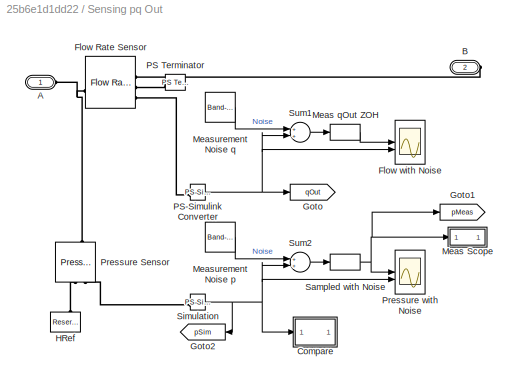
BLOCK [SubSystem] Sensing pq Out
BLOCK [PMIOPort] Sensing pq Out/A
  Side = Left
BLOCK [PMIOPort] Sensing pq Out/B
  Port = 2
  Side = Right
BLOCK [SubSystem] Sensing pq Out/Compare
BLOCK [FromWorkspace] Sensing pq Out/Compare/Measured Data
  OutputAfterFinalValue = Holding final value
  VariableName = [pOutMeas_time pOutMeas_data]
BLOCK [Scope] Sensing pq Out/Compare/Output Pressure
  Floating = off
  NumInputPorts = 2
  ScopeSpecificationString = Simulink.scopes.TimeScopeBlockCfg('CurrentConfiguration', extmgr.ConfigurationSet(extmgr.Configuration('Core','General UI',true),extmgr.Configuration('Core','Source UI',true),extmgr.Configuration('Sources','WiredSimulink',true,'DataLoggingVariableName','ScopeData1'),extmgr.Configuration('Visuals','Time Domain',true,'SerializedDisplays',{struct('MinYLimReal','6.95756','MaxYLimReal','7.33433','YLabe...<+1581ch>
BLOCK [ZeroOrderHold] Sensing pq Out/Compare/Zero-Order Hold
  SampleTime = -1
BLOCK [Inport] Sensing pq Out/Compare/pOut
BLOCK [Reference] Sensing pq Out/Flow Rate Sensor  REF=fl_lib/Isothermal Liquid/Sensors/Flow Rate Sensor
(IL)
  LibrarySourceBlock = fl_lib/Hydraulic/Hydraulic Sensors/Hydraulic Flow Rate\nSensor
  SourceBlock = fl_lib/Isothermal Liquid/Sensors/Flow Rate Sensor\n(IL)
  SourceType = Flow Rate Sensor\n(IL)
BLOCK [Scope] Sensing pq Out/Flow with Noise
  Floating = off
  NumInputPorts = 2
  ScopeSpecificationString = Simulink.scopes.TimeScopeBlockCfg('CurrentConfiguration', extmgr.ConfigurationSet(extmgr.Configuration('Core','General UI',true),extmgr.Configuration('Core','Source UI',true),extmgr.Configuration('Sources','WiredSimulink',true,'DataLoggingVariableName','ScopeData1'),extmgr.Configuration('Visuals','Time Domain',true,'SerializedDisplays',{struct('MinYLimReal','-6.25341','MaxYLimReal','51.79569','YLa...<+1417ch>
BLOCK [Goto] Sensing pq Out/Goto
  GotoTag = qOut
  NameLocation = top
  TagVisibility = global
BLOCK [Goto] Sensing pq Out/Goto1
  GotoTag = pMeas
  NameLocation = top
  TagVisibility = global
BLOCK [Goto] Sensing pq Out/Goto2
  GotoTag = pSim
  NameLocation = top
  TagVisibility = global
BLOCK [Reference] Sensing pq Out/HRef  REF=fl_lib/Isothermal Liquid/Elements/Reservoir (IL)
  LibrarySourceBlock = fl_lib/Hydraulic/Hydraulic Elements/Hydraulic Reference
  NameLocation = right
  SourceBlock = fl_lib/Isothermal Liquid/Elements/Reservoir (IL)
  SourceType = Reservoir (IL)
BLOCK [SubSystem] Sensing pq Out/Meas Scope
BLOCK [Scope] Sensing pq Out/Meas Scope/Output Pressure Measurement
  Floating = off
  NumInputPorts = 1
  ScopeSpecificationString = Simulink.scopes.TimeScopeBlockCfg('CurrentConfiguration', extmgr.ConfigurationSet(extmgr.Configuration('Core','General UI',true),extmgr.Configuration('Core','Source UI',true),extmgr.Configuration('Sources','WiredSimulink',true,'DataLoggingVariableName','ScopeData1'),extmgr.Configuration('Visuals','Time Domain',true,'SerializedDisplays',{struct('MinYLimReal','6.95483','MaxYLimReal','7.36166','YLabe...<+1625ch>
BLOCK [Inport] Sensing pq Out/Meas Scope/pMeas
BLOCK [ZeroOrderHold] Sensing pq Out/Meas qOut ZOH
  NameLocation = top
  SampleTime = TRP_Par.Sensors.q.Ts
BLOCK [Reference] Sensing pq Out/Measurement Noise p  REF=simulink/Sources/Band-Limited
White Noise
  SourceBlock = simulink/Sources/Band-Limited\nWhite Noise
  SourceType = Band-Limited White Noise.
BLOCK [Reference] Sensing pq Out/Measurement Noise q  REF=simulink/Sources/Band-Limited
White Noise
  SourceBlock = simulink/Sources/Band-Limited\nWhite Noise
  SourceType = Band-Limited White Noise.
BLOCK [Reference] Sensing pq Out/PS Terminator  REF=fl_lib/Physical Signals/Sinks/PS Terminator
  NameLocation = top
  SourceBlock = fl_lib/Physical Signals/Sinks/PS Terminator
  SourceType = PS Terminator
BLOCK [Reference] Sensing pq Out/PS-Simulink Converter  REF=nesl_utility/PS-Simulink
Converter
  SourceBlock = nesl_utility/PS-Simulink\nConverter
  SourceType = PS-Simulink\nConverter
BLOCK [Reference] Sensing pq Out/Pressure Sensor  REF=fl_lib/Isothermal Liquid/Sensors/Pressure Sensor (IL)
  LibrarySourceBlock = fl_lib/Hydraulic/Hydraulic Sensors/Hydraulic Pressure\nSensor
  NameLocation = right
  SourceBlock = fl_lib/Isothermal Liquid/Sensors/Pressure Sensor (IL)
  SourceType = Pressure Sensor (IL)
BLOCK [Scope] Sensing pq Out/Pressure with Noise
  Floating = off
  NumInputPorts = 2
  ScopeSpecificationString = Simulink.scopes.TimeScopeBlockCfg('CurrentConfiguration', extmgr.ConfigurationSet(extmgr.Configuration('Core','General UI',true),extmgr.Configuration('Core','Source UI',true),extmgr.Configuration('Sources','WiredSimulink',true,'DataLoggingVariableName','ScopeData1'),extmgr.Configuration('Visuals','Time Domain',true,'SerializedDisplays',{struct('MinYLimReal','6.95483','MaxYLimReal','7.36166','YLabe...<+1484ch>
BLOCK [ZeroOrderHold] Sensing pq Out/Sampled with Noise
  NameLocation = top
  SampleTime = TRP_Par.Sensors.p.Ts
BLOCK [Reference] Sensing pq Out/Simulation  REF=nesl_utility/PS-Simulink
Converter
  SourceBlock = nesl_utility/PS-Simulink\nConverter
  SourceType = PS-Simulink\nConverter
BLOCK [Sum] Sensing pq Out/Sum1
  Inputs = ++|
BLOCK [Sum] Sensing pq Out/Sum2
  Inputs = ++|
BLOCK [Scope] pOut
  Floating = off
  NumInputPorts = 2
  ScopeSpecificationString = Simulink.scopes.TimeScopeBlockCfg('CurrentConfiguration', extmgr.ConfigurationSet(extmgr.Configuration('Core','General UI',true),extmgr.Configuration('Core','Source UI',true),extmgr.Configuration('Sources','WiredSimulink',true,'DataLoggingVariableName','ScopeData1'),extmgr.Configuration('Visuals','Time Domain',true,'SerializedDisplays',{struct('MinYLimReal','6.95483','MaxYLimReal','7.36166','YLabe...<+1640ch>
ANNOTATION (root): Blocked Inlet
ANNOTATION (root): Linear Inductance Motor Water Pump
ANNOTATION (root): No Fault
ANNOTATION (root): Seal Leak
ANNOTATION (root): Worn Bearing
ANNOTATION Load: Water Volume = 16e-2 m^3 or 160 liter
LINE Diagnostics/Demux:1 -> Diagnostics/Term Leak Cyl 1:1
LINE Diagnostics/Demux:2 -> Diagnostics/Term Leak Cyl 2:1
LINE Diagnostics/Demux:3 -> Diagnostics/Term Leak Cyl 3:1
LINE Diagnostics/Demux:4 -> Diagnostics/Term Leak Cyl 4:1
LINE Diagnostics/Diagnostics/Off/Constant1:1 -> Diagnostics/Diagnostics/Off/hmi:1
LINE Diagnostics/Diagnostics/Off/Constant:1 -> Diagnostics/Diagnostics/Off/fault:1
LINE Diagnostics/Diagnostics/Off/pOut:1 -> Diagnostics/Diagnostics/Off/Terminator:1
LINE Diagnostics/Diagnostics/On/Clock:1 -> Diagnostics/Diagnostics/On/Steady State:1
LINE Diagnostics/Diagnostics/On/Collect Data:1 -> Diagnostics/Diagnostics/On/FFT and Classification:1
LINE Diagnostics/Diagnostics/On/FFT and Classification:1 -> Diagnostics/Diagnostics/On/fault:1
LINE Diagnostics/Diagnostics/On/FFT and Classification:2 -> Diagnostics/Diagnostics/On/hmi:1
LINE Diagnostics/Diagnostics/On/Motor Speed (RPM):1 -> Diagnostics/Diagnostics/On/FFT and Classification:3
LINE Diagnostics/Diagnostics/On/Steady State:1 -> Diagnostics/Diagnostics/On/FFT and Classification:2
LINE Diagnostics/Diagnostics/On/pOut:1 -> Diagnostics/Diagnostics/On/Collect Data:1
LINE Diagnostics/Diagnostics:1 -> Diagnostics/ToEnum:1
LINE Diagnostics/Diagnostics:2 -> Diagnostics/Lamp Control:1
LINE Diagnostics/Lamp Control/Compare To Zero:1 -> Diagnostics/Lamp Control/Switch:2
NET Diagnostics/Lamp Control/Demux:1 -> Diagnostics/Lamp Control/Switch Nom:1, Diagnostics/Lamp Control/Switch Nom:2
NET Diagnostics/Lamp Control/Demux:2 -> Diagnostics/Lamp Control/Switch Leak:1, Diagnostics/Lamp Control/Switch Leak:2
NET Diagnostics/Lamp Control/Demux:3 -> Diagnostics/Lamp Control/Switch Inlet:1, Diagnostics/Lamp Control/Switch Inlet:2
NET Diagnostics/Lamp Control/Demux:4 -> Diagnostics/Lamp Control/Switch Bearing:1, Diagnostics/Lamp Control/Switch Bearing:2
NET Diagnostics/Lamp Control/Lamp Off:1 -> Diagnostics/Lamp Control/Switch Bearing:3, Diagnostics/Lamp Control/Switch Inlet:3, Diagnostics/Lamp Control/Switch Leak:3, Diagnostics/Lamp Control/Switch Nom:3
LINE Diagnostics/Lamp Control/Lamp Wait:1 -> Diagnostics/Lamp Control/Switch:1
LINE Diagnostics/Lamp Control/Mux:1 -> Diagnostics/Lamp Control/Switch:3
LINE Diagnostics/Lamp Control/Sum1:1 -> Diagnostics/Lamp Control/Compare To Zero:1
LINE Diagnostics/Lamp Control/Switch Bearing:1 -> Diagnostics/Lamp Control/Mux:4
LINE Diagnostics/Lamp Control/Switch Inlet:1 -> Diagnostics/Lamp Control/Mux:3
LINE Diagnostics/Lamp Control/Switch Leak:1 -> Diagnostics/Lamp Control/Mux:2
LINE Diagnostics/Lamp Control/Switch Nom:1 -> Diagnostics/Lamp Control/Mux:1
LINE Diagnostics/Lamp Control/Switch:1 -> Diagnostics/Lamp Control/lamps:1
NET Diagnostics/Lamp Control/hmi:1 -> Diagnostics/Lamp Control/Demux:1, Diagnostics/Lamp Control/Sum1:1
LINE Diagnostics/Lamp Control:1 -> Diagnostics/Demux:1
LINE Diagnostics/ToEnum:1 -> Diagnostics/Display:1
LINE Diagnostics/pMeas:1 -> Diagnostics/Diagnostics:1
LINE Driver/Driver/Dyno/PS-Simulink Converter:1 -> Driver/Driver/Dyno/Sensing Speed:1
LINE Driver/Driver/Dyno/Sensing Speed/Measurement Noise:1 -> Driver/Driver/Dyno/Sensing Speed/Sum1:1
NET Driver/Driver/Dyno/Sensing Speed/Motor Gear Ratio:1 -> Driver/Driver/Dyno/Sensing Speed/Speed with Noise:2, Driver/Driver/Dyno/Sensing Speed/Sum1:2
LINE Driver/Driver/Dyno/Sensing Speed/Sum1:1 -> Driver/Driver/Dyno/Sensing Speed/Zero-Order Hold:1
LINE Driver/Driver/Dyno/Sensing Speed/Zero-Order Hold:1 -> Driver/Driver/Dyno/Sensing Speed/Speed with Noise:1
LINE Driver/Driver/Dyno/Sensing Speed/w:1 -> Driver/Driver/Dyno/Sensing Speed/Motor Gear Ratio:1
LINE Driver/Driver/Motor/Motor Speed (RPM):1 -> Driver/Driver/Motor/Speed Controller:1
LINE Driver/Driver/Motor/Sensing Motor Speed/Measurement Noise:1 -> Driver/Driver/Motor/Sensing Motor Speed/Sum1:1
NET Driver/Driver/Motor/Sensing Motor Speed/PS-Simulink Converter 2:1 -> Driver/Driver/Motor/Sensing Motor Speed/Speed with Noise:2, Driver/Driver/Motor/Sensing Motor Speed/Sum1:2
LINE Driver/Driver/Motor/Sensing Motor Speed/Sum1:1 -> Driver/Driver/Motor/Sensing Motor Speed/Zero-Order Hold:1
LINE Driver/Driver/Motor/Sensing Motor Speed/Zero-Order Hold:1 -> Driver/Driver/Motor/Sensing Motor Speed/Speed with Noise:1
LINE Driver/Driver/Motor/Sensing Pump Speed/PS-Simulink Converter 1:1 -> Driver/Driver/Motor/Sensing Pump Speed/A:1
LINE Driver/Driver/Motor/Sensing Pump Speed/PS-Simulink Converter 2:1 -> Driver/Driver/Motor/Sensing Pump Speed/rpm:1
LINE Driver/Driver/Motor/Sensing Pump Speed:1 -> Driver/Driver/Motor/Windings:2
LINE Driver/Driver/Motor/Sensing Pump Speed:2 -> Driver/Driver/Motor/Speed Controller:2
LINE Driver/Driver/Motor/Speed Controller/Integrator:1 -> Driver/Driver/Motor/Speed Controller/Sum1:1
LINE Driver/Driver/Motor/Speed Controller/Ki:1 -> Driver/Driver/Motor/Speed Controller/Integrator:1
LINE Driver/Driver/Motor/Speed Controller/Kp:1 -> Driver/Driver/Motor/Speed Controller/Sum1:2
LINE Driver/Driver/Motor/Speed Controller/Lowpass Filter:1 -> Driver/Driver/Motor/Speed Controller/Sum:1
LINE Driver/Driver/Motor/Speed Controller/Sum1:1 -> Driver/Driver/Motor/Speed Controller/Torque Limits:1
NET Driver/Driver/Motor/Speed Controller/Sum:1 -> Driver/Driver/Motor/Speed Controller/Ki:1, Driver/Driver/Motor/Speed Controller/Kp:1
LINE Driver/Driver/Motor/Speed Controller/Torque Limits:1 -> Driver/Driver/Motor/Speed Controller/T_ref:1
LINE Driver/Driver/Motor/Speed Controller/rpm:1 -> Driver/Driver/Motor/Speed Controller/Lowpass Filter:1
LINE Driver/Driver/Motor/Speed Controller/rpm_ref:1 -> Driver/Driver/Motor/Speed Controller/Sum:2
LINE Driver/Driver/Motor/Speed Controller:1 -> Driver/Driver/Motor/Windings:1
LINE Driver/Driver/Motor/Windings/Constant1:1 -> Driver/Driver/Motor/Windings/Switch:3
LINE Driver/Driver/Motor/Windings/Constant:1 -> Driver/Driver/Motor/Windings/Switch:2
LINE Driver/Driver/Motor/Windings/Enable if rotor angle 0-240 Deg/Ang:1 -> Driver/Driver/Motor/Windings/Enable if rotor angle 0-240 Deg/Math Function:1
LINE Driver/Driver/Motor/Windings/Enable if rotor angle 0-240 Deg/Constant2:1 -> Driver/Driver/Motor/Windings/Enable if rotor angle 0-240 Deg/Math Function:2
LINE Driver/Driver/Motor/Windings/Enable if rotor angle 0-240 Deg/Interval Test:1 -> Driver/Driver/Motor/Windings/Enable if rotor angle 0-240 Deg/En:1
LINE Driver/Driver/Motor/Windings/Enable if rotor angle 0-240 Deg/Math Function:1 -> Driver/Driver/Motor/Windings/Enable if rotor angle 0-240 Deg/Interval Test:1
LINE Driver/Driver/Motor/Windings/Enable if rotor angle 0-240 Deg:1 -> Driver/Driver/Motor/Windings/Switch:1
LINE Driver/Driver/Motor/Windings/Product:1 -> Driver/Driver/Motor/Windings/Trq:1
LINE Driver/Driver/Motor/Windings/Switch:1 -> Driver/Driver/Motor/Windings/Product:2
LINE Driver/Driver/Motor/Windings/T_ref:1 -> Driver/Driver/Motor/Windings/Product:1
LINE Driver/Driver/Motor/Windings/Unit Delay:1 -> Driver/Driver/Motor/Windings/Enable if rotor angle 0-240 Deg:1
LINE Driver/Driver/Motor/Windings/deg:1 -> Driver/Driver/Motor/Windings/Unit Delay:1
NET Driver/Driver/Motor/Windings:1 -> Driver/Driver/Motor/Nm:1, Driver/Driver/Motor/Scope:1
NET From2:1 -> Diagnostics:1, pOut:1
LINE From3:1 -> pOut:2
LINE Sensing Current/Measurement Noise:1 -> Sensing Current/Sum1:1
NET Sensing Current/PS-Simulink Converter:1 -> Sensing Current/Current with Noise:2, Sensing Current/Sum1:2
LINE Sensing Current/Sum1:1 -> Sensing Current/Zero-Order Hold:1
LINE Sensing Current/Zero-Order Hold:1 -> Sensing Current/Current with Noise:1
LINE Sensing pq In/From:1 -> Sensing pq In/Flow:2
LINE Sensing pq In/Meas pIn ZOH:1 -> Sensing pq In/Pressure with Noise:1
LINE Sensing pq In/Meas qIn ZOH:1 -> Sensing pq In/Flow with Noise:1
LINE Sensing pq In/Measurement Noise p:1 -> Sensing pq In/Sum2:1
LINE Sensing pq In/Measurement Noise q:1 -> Sensing pq In/Sum1:1
NET Sensing pq In/PS-Simulink Converter:1 -> Sensing pq In/Flow with Noise:2, Sensing pq In/Flow:1, Sensing pq In/Sum1:2
LINE Sensing pq In/Sum1:1 -> Sensing pq In/Meas qIn ZOH:1
LINE Sensing pq In/Sum2:1 -> Sensing pq In/Meas pIn ZOH:1
NET Sensing pq In/pIn sim PS-SL:1 -> Sensing pq In/Pressure with Noise:2, Sensing pq In/Sum2:2
LINE Sensing pq Out/Compare/Measured Data:1 -> Sensing pq Out/Compare/Zero-Order Hold:1
LINE Sensing pq Out/Compare/Zero-Order Hold:1 -> Sensing pq Out/Compare/Output Pressure:2
LINE Sensing pq Out/Compare/pOut:1 -> Sensing pq Out/Compare/Output Pressure:1
LINE Sensing pq Out/Meas Scope/pMeas:1 -> Sensing pq Out/Meas Scope/Output Pressure Measurement:1
LINE Sensing pq Out/Meas qOut ZOH:1 -> Sensing pq Out/Flow with Noise:1
LINE Sensing pq Out/Measurement Noise p:1 -> Sensing pq Out/Sum2:1
LINE Sensing pq Out/Measurement Noise q:1 -> Sensing pq Out/Sum1:1
NET Sensing pq Out/PS-Simulink Converter:1 -> Sensing pq Out/Flow with Noise:2, Sensing pq Out/Goto:1, Sensing pq Out/Sum1:2
NET Sensing pq Out/Sampled with Noise:1 -> Sensing pq Out/Goto1:1, Sensing pq Out/Meas Scope:1, Sensing pq Out/Pressure with Noise:1
NET Sensing pq Out/Simulation:1 -> Sensing pq Out/Compare:1, Sensing pq Out/Goto2:1, Sensing pq Out/Pressure with Noise:2, Sensing pq Out/Sum2:2
LINE Sensing pq Out/Sum1:1 -> Sensing pq Out/Meas qOut ZOH:1
LINE Sensing pq Out/Sum2:1 -> Sensing pq Out/Sampled with Noise:1
PLINE DC Voltage Source:LConn1 -- Sensing Current:LConn1
PNET net1: DC Voltage Source:RConn1 -- Driver:LConn2 -- Electrical Reference:LConn1
PLINE Driver/+:RConn1 -- Driver/Driver:LConn1
PLINE Driver/-:RConn1 -- Driver/Driver:LConn2
PLINE Driver/B:RConn1 -- Driver/Driver:RConn2
PLINE Driver/Driver/Dyno/+:RConn1 -- Driver/Driver/Dyno/Controlled Current Source:RConn2
PLINE Driver/Driver/Dyno/-:RConn1 -- Driver/Driver/Dyno/Controlled Current Source:LConn1
PLINE Driver/Driver/Dyno/B:RConn1 -- Driver/Driver/Dyno/Revolute Crank:LConn1
PLINE Driver/Driver/Dyno/Controlled Current Source:RConn1 -- Driver/Driver/Dyno/PS Gain:RConn1
PLINE Driver/Driver/Dyno/F:RConn1 -- Driver/Driver/Dyno/Revolute Crank:RConn1
PLINE Driver/Driver/Dyno/Motor Speed:RConn1 -- Driver/Driver/Dyno/PS Integrator:LConn1
PLINE Driver/Driver/Dyno/PS Gain:LConn1 -- Driver/Driver/Dyno/Revolute Crank:RConn3
PLINE Driver/Driver/Dyno/PS Integrator:RConn1 -- Driver/Driver/Dyno/Revolute Crank:LConn2
PLINE Driver/Driver/Dyno/PS-Simulink Converter:LConn1 -- Driver/Driver/Dyno/Revolute Crank:RConn2
PLINE Driver/Driver/Motor/+:RConn1 -- Driver/Driver/Motor/Motor:LConn1
PLINE Driver/Driver/Motor/-:RConn1 -- Driver/Driver/Motor/Motor:RConn1
PLINE Driver/Driver/Motor/B:RConn1 -- Driver/Driver/Motor/shaft:LConn1
PLINE Driver/Driver/Motor/F:RConn1 -- Driver/Driver/Motor/shaft:RConn1
PNET net2: Driver/Driver/Motor/Gear Box:LConn1 -- Driver/Driver/Motor/Motor:LConn3 -- Driver/Driver/Motor/Sensing Motor Speed:LConn1
PNET net3: Driver/Driver/Motor/Gear Box:RConn1 -- Driver/Driver/Motor/Rotational Multibody Interface:LConn2 -- Driver/Driver/Motor/Sensing Pump Speed:LConn1
PLINE Driver/Driver/Motor/MRRef Motor1:LConn1 -- Driver/Driver/Motor/Motor:RConn3
PLINE Driver/Driver/Motor/Mechanical Rotational Reference:LConn1 -- Driver/Driver/Motor/Rotational Multibody Interface:RConn2
PLINE Driver/Driver/Motor/Motor:LConn2 -- Driver/Driver/Motor/Nm:RConn1
PLINE Driver/Driver/Motor/Motor:RConn2 -- Driver/Driver/Motor/PS Terminator:LConn1
PLINE Driver/Driver/Motor/Rotational Multibody Interface:LConn1 -- Driver/Driver/Motor/shaft:LConn2
PLINE Driver/Driver/Motor/Rotational Multibody Interface:RConn1 -- Driver/Driver/Motor/shaft:RConn2
PLINE Driver/Driver/Motor/Sensing Motor Speed/MRRef:LConn1 -- Driver/Driver/Motor/Sensing Motor Speed/Motion Sensor:RConn1
PLINE Driver/Driver/Motor/Sensing Motor Speed/Motion Sensor:LConn1 -- Driver/Driver/Motor/Sensing Motor Speed/R:RConn1
PLINE Driver/Driver/Motor/Sensing Motor Speed/Motion Sensor:RConn2 -- Driver/Driver/Motor/Sensing Motor Speed/PS-Simulink Converter 2:LConn1
PLINE Driver/Driver/Motor/Sensing Motor Speed/Motion Sensor:RConn3 -- Driver/Driver/Motor/Sensing Motor Speed/PS Terminator:LConn1
PLINE Driver/Driver/Motor/Sensing Pump Speed/MRRef:LConn1 -- Driver/Driver/Motor/Sensing Pump Speed/Motion Sensor:RConn1
PLINE Driver/Driver/Motor/Sensing Pump Speed/Motion Sensor:LConn1 -- Driver/Driver/Motor/Sensing Pump Speed/R:RConn1
PLINE Driver/Driver/Motor/Sensing Pump Speed/Motion Sensor:RConn2 -- Driver/Driver/Motor/Sensing Pump Speed/PS-Simulink Converter 2:LConn1
PLINE Driver/Driver/Motor/Sensing Pump Speed/Motion Sensor:RConn3 -- Driver/Driver/Motor/Sensing Pump Speed/PS-Simulink Converter 1:LConn1
PLINE Driver/Driver:RConn1 -- Driver/F:RConn1
PLINE Driver:LConn1 -- Sensing Current:RConn1
PLINE Driver:RConn1 -- Pump:LConn1
PLINE Driver:RConn2 -- Pump:LConn2
PNET net4: Fluid Properties:RConn1 -- HRef In:LConn1 -- Pipe In:LConn1
PLINE HRef Out:LConn1 -- Load:RConn1
PNET net5: Input Manifold/A:RConn1 -- Input Manifold/B1:RConn1 -- Input Manifold/B2:RConn1 -- Input Manifold/B3:RConn1 -- Input Manifold/Chamber:LConn1
PLINE Input Manifold:LConn1 -- Pump:RConn4
PLINE Input Manifold:LConn2 -- Pump:RConn5
PLINE Input Manifold:LConn3 -- Pump:RConn6
PLINE Input Manifold:RConn1 -- Sensing pq In:RConn1
PNET net6: Load/A:RConn1 -- Load/Chamber:LConn1 -- Load/Orifice:LConn1
PLINE Load/B:RConn1 -- Load/Pressure Source:LConn1
PLINE Load/Orifice:RConn1 -- Load/Pressure Source:RConn1
PLINE Load:LConn1 -- Pipe Out:RConn1
PNET net7: Output Manifold/A1:RConn1 -- Output Manifold/A2:RConn1 -- Output Manifold/A3:RConn1 -- Output Manifold/B:RConn1 -- Output Manifold/Chamber:LConn1
PLINE Output Manifold:LConn1 -- Pump:RConn1
PLINE Output Manifold:LConn2 -- Pump:RConn2
PLINE Output Manifold:LConn3 -- Pump:RConn3
PLINE Output Manifold:RConn1 -- Sensing pq Out:LConn1
PLINE Pipe In:RConn1 -- Sensing pq In:LConn1
PLINE Pipe Out:LConn1 -- Sensing pq Out:RConn1
PLINE Sensing Current/+:RConn1 -- Sensing Current/Current Sensor:LConn1
PLINE Sensing Current/-:RConn1 -- Sensing Current/Current Sensor:RConn2
PLINE Sensing Current/Current Sensor:RConn1 -- Sensing Current/PS-Simulink Converter:LConn1
PNET net8: Sensing pq In/A:RConn1 -- Sensing pq In/Flow Rate Sensor:LConn1 -- Sensing pq In/Pressure Sensor:LConn1
PLINE Sensing pq In/B:RConn1 -- Sensing pq In/Flow Rate Sensor:RConn1
PLINE Sensing pq In/Flow Rate Sensor:RConn2 -- Sensing pq In/PS Terminator:LConn1
PLINE Sensing pq In/Flow Rate Sensor:RConn3 -- Sensing pq In/PS-Simulink Converter:LConn1
PLINE Sensing pq In/HRef:LConn1 -- Sensing pq In/Pressure Sensor:RConn1
PLINE Sensing pq In/Pressure Sensor:RConn2 -- Sensing pq In/pIn sim PS-SL:LConn1
PNET net9: Sensing pq Out/A:RConn1 -- Sensing pq Out/Flow Rate Sensor:LConn1 -- Sensing pq Out/Pressure Sensor:LConn1
PLINE Sensing pq Out/B:RConn1 -- Sensing pq Out/Flow Rate Sensor:RConn1
PLINE Sensing pq Out/Flow Rate Sensor:RConn2 -- Sensing pq Out/PS Terminator:LConn1
PLINE Sensing pq Out/Flow Rate Sensor:RConn3 -- Sensing pq Out/PS-Simulink Converter:LConn1
PLINE Sensing pq Out/HRef:LConn1 -- Sensing pq Out/Pressure Sensor:RConn1
PLINE Sensing pq Out/Pressure Sensor:RConn2 -- Sensing pq Out/Simulation:LConn1
note: NET lines group one-source signal fan-out (src -> all destinations, sorted); 1:1 wires keep LINE; PNET lines group multi-terminal physical nets as a canonical sorted terminal list (undirected conserving connections); 2-terminal nets keep the pairwise PLINE form
CHART Diagnostics/Diagnostics/On/FFT and 
Classification states=1 transitions=1
  STATE_LABEL 'eML_blk_kernel()'
  STATE_LABEL 'SCRIPT:\nfunction [faultState,hmiVec] = faultClassifier(pArray,enablePred,cmdSpeed)\n\n% Initialize Predicted Machine State\nfaultState = int8(0);\nhmiVec = [1 0 0 0];\n\n% Sampling Parameters\nNp = 1000;\nDt = 0.001;\nnumFreqPeaks = 5;\n\n% Initialize Prediction Algorithm Input\npredIn = NaN(1,2*numFreqPeaks+1);\n\npAvg = mean(pArray);\n\n% Load Trained Machine Learning Algorithm\npumpPredict = loadLearnerForCoder...<+1799ch>'
CHART Diagnostics/Diagnostics/On/Collect Data states=1 transitions=1
  STATE_LABEL 'eML_blk_kernel()'
  STATE_LABEL 'SCRIPT:\nfunction pArray  = dataAccum(pOut)\n\npersistent pOutArray\n\nNp = 1000;\n\nif isempty(pOutArray)\n    pOutArray = zeros(Np,1);\nend\n\npOutArray = [pOut; pOutArray(1:Np-1)];\npArray = pOutArray;\nend\n'
CHART  states=0 transitions=0
CHART  states=0 transitions=0
